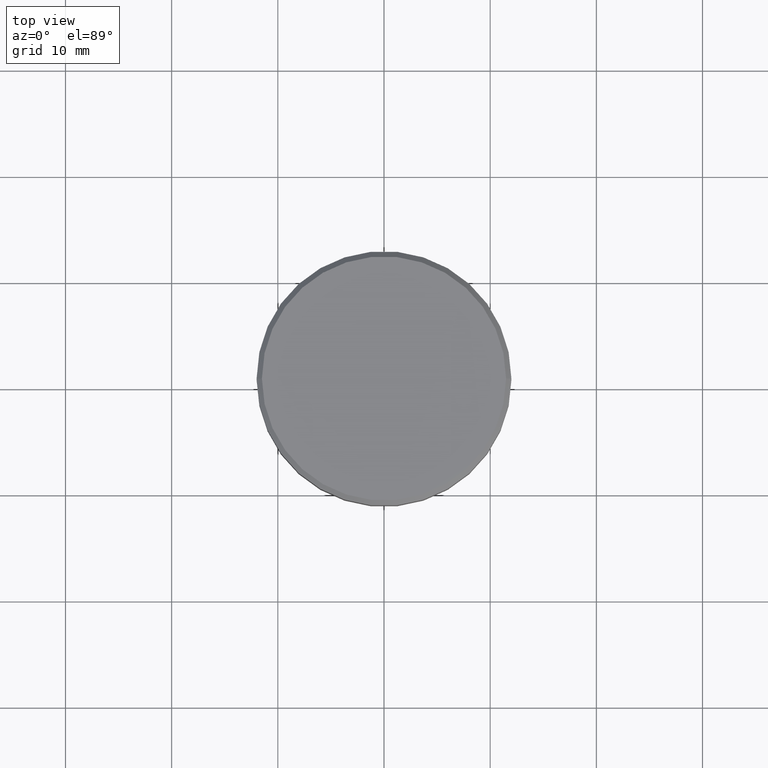
[diagram: clean part render]
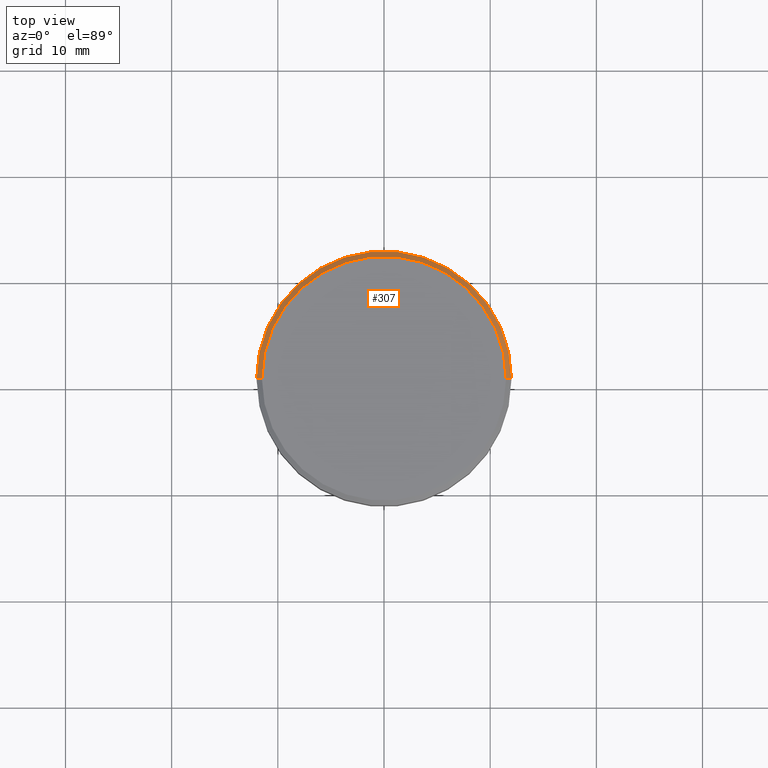
[diagram: same view with one face highlighted and labeled with its STEP entity id]
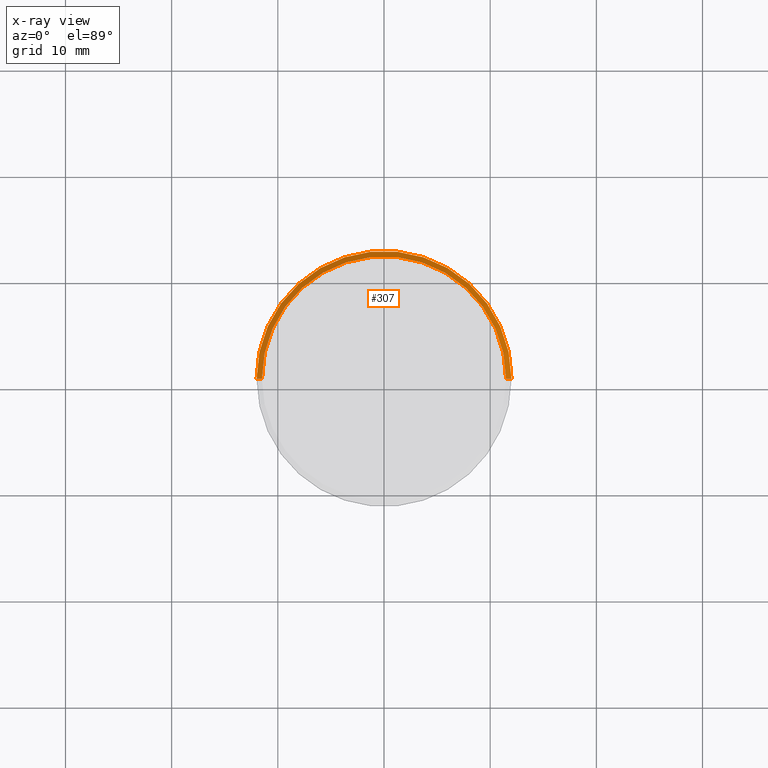
[diagram: x-ray of the same camera — body ghosted, the highlighted face saturated]
A machine part, top view. The second image highlights one B-rep face of the part: STEP entity #307.
The next image is the same camera in x-ray: the body ghosted, the highlighted face saturated — about 0% of this face is hidden behind the body in this view.
In plain terms, the highlighted conical surface has half-angle 45 deg.
Its self-contained STEP definition (entity closure, byte-faithful):
#19 = FACE_OUTER_BOUND ( 'NONE', #434, .T. ) ;
#115 = VERTEX_POINT ( 'NONE', #263 ) ;
#146 = EDGE_CURVE ( 'NONE', #180, #508, #351, .T. ) ;
#151 = AXIS2_PLACEMENT_3D ( 'NONE', #439, #211, #161 ) ;
#152 = ORIENTED_EDGE ( 'NONE', *, *, #484, .F. ) ;
#155 = DIRECTION ( 'NONE',  ( 0.000000000000000000, 0.000000000000000000, -1.000000000000000000 ) ) ;
#161 = DIRECTION ( 'NONE',  ( 1.000000000000000000, 0.000000000000000000, 0.000000000000000000 ) ) ;
#180 = VERTEX_POINT ( 'NONE', #266 ) ;
#183 = CARTESIAN_POINT ( 'NONE',  ( 11.49999999999999467, 1.408343819019455584E-15, 0.000000000000000000 ) ) ;
#195 = DIRECTION ( 'NONE',  ( -0.7071067811865451302, 0.000000000000000000, -0.7071067811865500152 ) ) ;
#203 = EDGE_CURVE ( 'NONE', #180, #115, #230, .T. ) ;
#211 = DIRECTION ( 'NONE',  ( 0.000000000000000000, 0.000000000000000000, -1.000000000000000000 ) ) ;
#221 = CARTESIAN_POINT ( 'NONE',  ( 0.000000000000000000, 0.000000000000000000, 0.000000000000000000 ) ) ;
#230 = LINE ( 'NONE', #183, #527 ) ;
#251 = AXIS2_PLACEMENT_3D ( 'NONE', #432, #155, #525 ) ;
#259 = ORIENTED_EDGE ( 'NONE', *, *, #598, .F. ) ;
#263 = CARTESIAN_POINT ( 'NONE',  ( 12.00000000000000000, 0.000000000000000000, -0.5000000000000091038 ) ) ;
#266 = CARTESIAN_POINT ( 'NONE',  ( 11.49999999999999467, 1.438959988998139766E-15, 0.000000000000000000 ) ) ;
#268 = DIRECTION ( 'NONE',  ( 1.000000000000000000, 0.000000000000000000, 0.000000000000000000 ) ) ;
#307 = ADVANCED_FACE ( 'NONE', ( #19 ), #555, .T. ) ;
#315 = AXIS2_PLACEMENT_3D ( 'NONE', #221, #358, #268 ) ;
#320 = DIRECTION ( 'NONE',  ( 0.7071067811865451302, 8.659560562354903276E-17, -0.7071067811865500152 ) ) ;
#321 = ORIENTED_EDGE ( 'NONE', *, *, #203, .T. ) ;
#331 = VERTEX_POINT ( 'NONE', #574 ) ;
#333 = CARTESIAN_POINT ( 'NONE',  ( -11.49999999999999467, 0.000000000000000000, 0.000000000000000000 ) ) ;
#339 = CARTESIAN_POINT ( 'NONE',  ( -11.49999999999999467, 0.000000000000000000, 0.000000000000000000 ) ) ;
#351 = CIRCLE ( 'NONE', #315, 11.49999999999999467 ) ;
#358 = DIRECTION ( 'NONE',  ( -0.000000000000000000, -0.000000000000000000, 1.000000000000000000 ) ) ;
#432 = CARTESIAN_POINT ( 'NONE',  ( 0.000000000000000000, 0.000000000000000000, 0.000000000000000000 ) ) ;
#434 = EDGE_LOOP ( 'NONE', ( #438, #321, #259, #152 ) ) ;
#438 = ORIENTED_EDGE ( 'NONE', *, *, #146, .F. ) ;
#439 = CARTESIAN_POINT ( 'NONE',  ( 0.000000000000000000, 0.000000000000000000, -0.5000000000000091038 ) ) ;
#484 = EDGE_CURVE ( 'NONE', #508, #331, #570, .T. ) ;
#508 = VERTEX_POINT ( 'NONE', #333 ) ;
#525 = DIRECTION ( 'NONE',  ( -1.000000000000000000, 0.000000000000000000, 0.000000000000000000 ) ) ;
#527 = VECTOR ( 'NONE', #320, 1000.000000000000114 ) ;
#537 = VECTOR ( 'NONE', #195, 1000.000000000000114 ) ;
#555 = CONICAL_SURFACE ( 'NONE', #251, 11.49999999999999467, 0.7853981633974447263 ) ;
#570 = LINE ( 'NONE', #339, #537 ) ;
#574 = CARTESIAN_POINT ( 'NONE',  ( -12.00000000000000000, 1.469576158976823947E-15, -0.5000000000000091038 ) ) ;
#598 = EDGE_CURVE ( 'NONE', #331, #115, #599, .T. ) ;
#599 = CIRCLE ( 'NONE', #151, 12.00000000000000000 ) ;